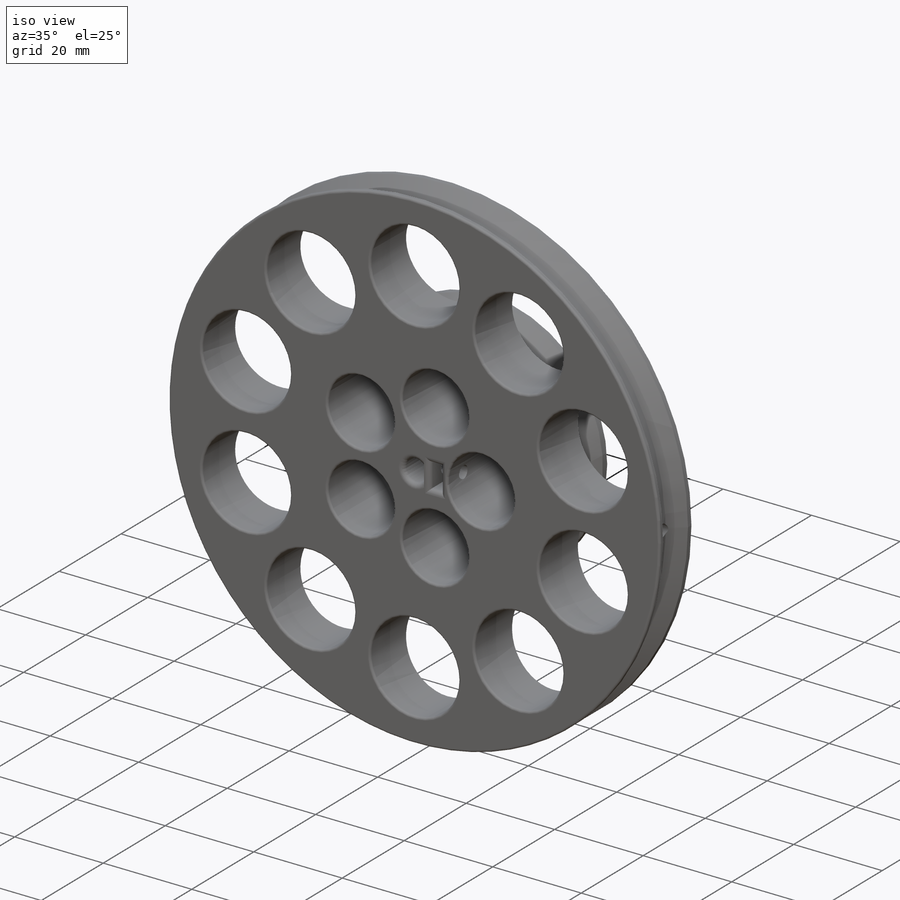
[diagram: iso view]
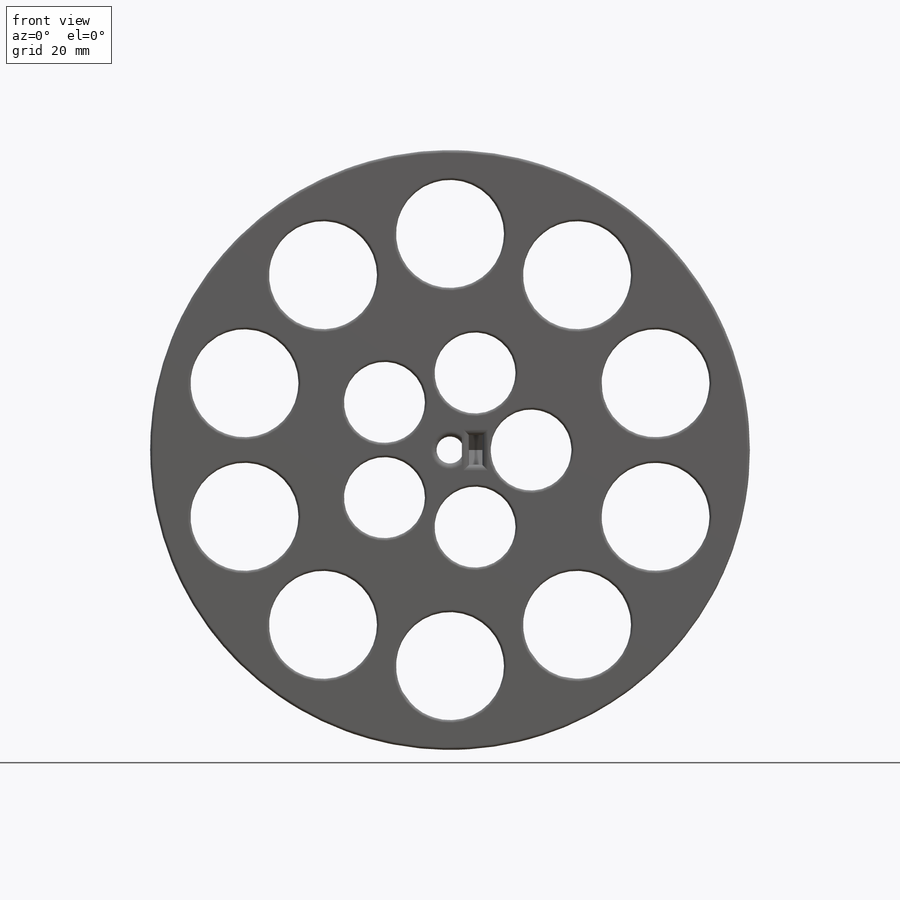
[diagram: front view]
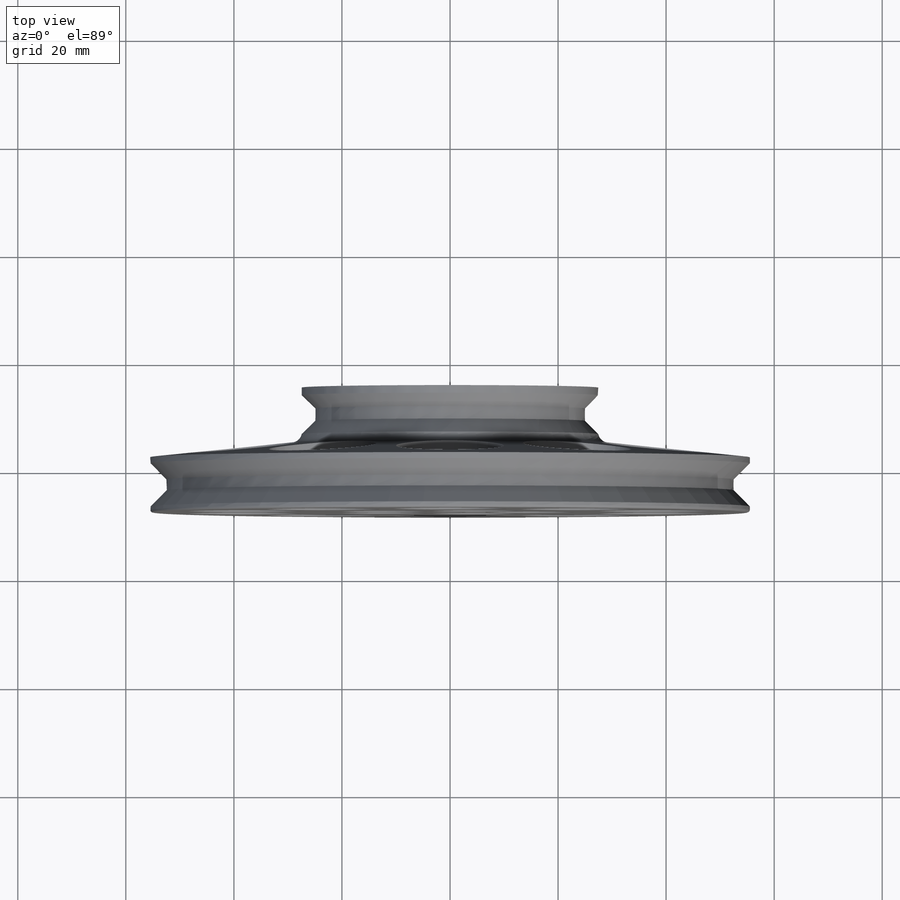
[diagram: top view]
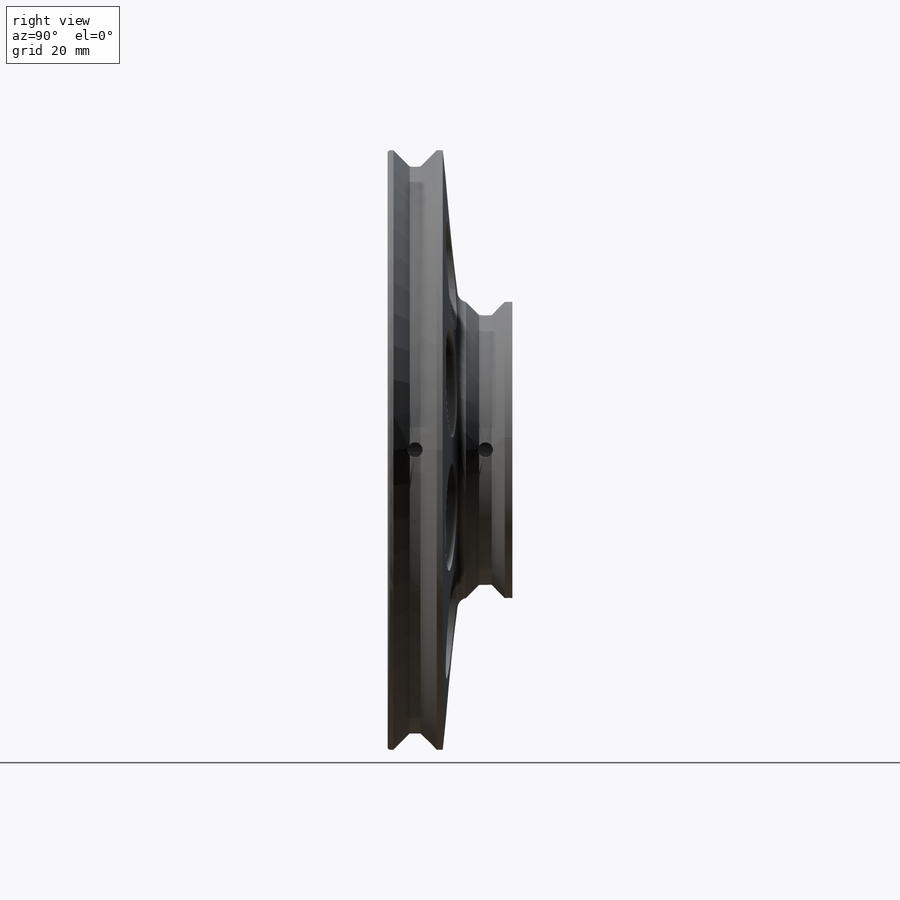
[diagram: right view]
SOLIDWORKS PART (.sldprt)
format: sldprt  version: not decoded by parser v0  size: 1,339,392 bytes
history: native  units: mm
features: sketch x41, cut_extrude x24, extrude x13, fillet x9, revolve x2, material x1, chamfer x1, plane x1, mirror x1 (+13 scaffold rows collapsed)
feature tree (106):
  scaffold x13  (default folders/planes/origin — collapsed)
  material  "Material <not specified>"
  sketch  "Sketch1"  dims[D1=5.0mm D2=105.0mm D3=4.7mm]
  extrude  "Boss-Extrude1"  Depth=6.2mm
  sketch  "Sketch2"  dims[D2=12.0mm D1=0.0mm]
  extrude  "Boss-Extrude2"  Depth=2.55mm
  sketch  "Sketch3"  dims[D1=3.0mm D2=3.6mm]
  cut_extrude  "Cut-Extrude1"  Depth=25mm
  sketch  "Sketch4"  dims[D1=5.45mm]
  cut_extrude  "Cut-Extrude2"  Depth=2.5mm
  sketch  "Sketch5"  dims[D1=8.0mm D2=18.0mm D3=8.0mm]
  cut_extrude  "Cut-Extrude3"  [1 undecoded]
  sketch  "Sketch6"  dims[D1=0.0mm]
  cut_extrude  "Cut-Extrude4"  [1 undecoded]
  fillet  "Fillet1"  Radius=3mm
  sketch  "Sketch7"  dims[D1=100.0mm D2=2.0mm]
  cut_extrude  "Cut-Extrude5"  Depth=2mm
  sketch  "Sketch8"  dims[c1.D1=3.0mm c1.D3=~43.876604mm c1.D2=2.0mm c2.D3=3.0]
  cut_extrude  "Cut-Extrude6"  [1 undecoded]
  sketch  "Sketch9"  dims[D1=3.2mm D2=3.2mm D3=3.2mm]
  cut_extrude  "Cut-Extrude7"  [1 undecoded]
  fillet  "Fillet2"  Radius=2mm
  sketch  "Sketch10"  dims[c1.D1=20.0mm c1.D2=30.0mm c1.D3=30.0mm c2.D3=30.0deg c2.D4=6.0]
  cut_extrude  "Cut-Extrude8"  [1 undecoded]
  sketch  "Sketch11"  dims[D1=0.0mm]
  extrude  "Boss-Extrude3"  [1 undecoded]
  sketch  "Sketch12"  dims[D1=0.0mm D2=0.0mm D3=0.0mm D4=0.0mm D5=0.0mm D6=0.0mm D7=0.0mm D8=0.0mm D9=0.0mm D10=0.0mm]
  extrude  "Boss-Extrude4"  Depth=2mm
  sketch  "Sketch13"  dims[D1=0.0mm D2=0.0mm D3=0.0mm D4=0.0mm D5=0.0mm D6=0.0mm D7=0.0mm D8=0.0mm D9=0.0mm D10=0.0mm D11=0.0mm D12=0.0mm]
  extrude  "Boss-Extrude5"  Depth=2mm
  sketch  "Sketch15"  dims[D1=0.0mm]
  extrude  "Boss-Extrude6"  Depth=0.75mm
  sketch  "Sketch16"  dims[D1=0.0mm]
  extrude  "Boss-Extrude7"  Depth=0.75mm
  sketch  "Sketch17"  dims[D1=2.0mm D2=4.1mm D3=4.1mm D4=3.0mm]
  revolve  "Revolve1"  Angle=360deg
  sketch  "Sketch18"  dims[D1=2.0mm D2=2.0mm D3=3.1mm]
  sketch  "Sketch19"  dims[D1=95.0mm]
  cut_extrude  "Cut-Extrude9"  Depth=3.1mm
  sketch  "Sketch20"  dims[D1=0.0mm D2=0.0mm D3=0.0mm D4=0.0mm D5=0.0mm D6=0.0mm D7=0.0mm D8=0.0mm D9=0.0mm D10=0.0mm]
  extrude  "Boss-Extrude8"  [1 undecoded]
  sketch  "Sketch22"  dims[c1.D1=3.25mm c1.D3=3.25mm c1.D2=3.55mm c2.D3=3.25mm c2.D4=7.1mm]
  cut_extrude  "Cut-Extrude10"  Depth=15mm
  sketch  "Sketch23"  dims[D1=5.5mm]
  cut_extrude  "Cut-Extrude11"  Depth=2.6mm
  chamfer  "Chamfer1"  Distance=3.1mm Angle=45deg
  sketch  "Sketch24"  dims[D1=3.0mm D2=5.1mm]
  cut_extrude  "Cut-Extrude12"  Depth=10mm
  sketch  "Sketch25"  dims[D1=0.0mm]
  cut_extrude  "Cut-Extrude13"  Depth=2mm
  fillet  "Fillet3"  Radius=1mm
  sketch  "Sketch26"
  cut_extrude  "Cut-Extrude14"  [1 undecoded]
  sketch  "Sketch27"  dims[D1=2.75mm]
  extrude  "Boss-Extrude9"  [1 undecoded]
  sketch  "Sketch28"
  extrude  "Boss-Extrude10"  [1 undecoded]
  sketch  "Sketch29"  dims[D1=20.0mm]
  extrude  "Boss-Extrude11"  Depth=16mm
  sketch  "Sketch30"  dims[c1.D1=~2.03884mm c1.D2=3.0mm c2.D1=4.0mm]
  cut_extrude  "Cut-Extrude15"  Depth=16mm
  sketch  "Sketch31"  dims[D1=5.5mm]
  cut_extrude  "Cut-Extrude16"  Depth=2.5mm
  sketch  "Sketch33"  dims[c1.D1=2.75mm c1.D2=2.75mm c1.D3=2.75mm c2.D2=1.0mm c2.D3=1.0mm]
  cut_extrude  "Cut-Extrude17"  Depth=14mm
  fillet  "Fillet4"  Radius=10mm
  fillet  "Fillet5"  Radius=1mm
  sketch  "Sketch35"  dims[D1=2.0mm]
  sketch  "Sketch34"
  extrude  "Boss-Extrude12"  Depth=0.5mm
  sketch  "Sketch36"  dims[c1.D1=10.0mm c1.D2=25.0mm c1.D3=~5.309145mm c2.D3=45.0deg]
  revolve  "Revolve2"  Angle=360deg
  sketch  "Sketch37"
  extrude  "Boss-Extrude13"  [1 undecoded]
  sketch  "Sketch38"  dims[D1=0.0mm]
  cut_extrude  "Cut-Extrude19"  [1 undecoded]
  sketch  "Sketch39"  dims[D1=20.0mm D2=40.0mm D3=10.0]
  cut_extrude  "Cut-Extrude20"  [1 undecoded]
  sketch  "Sketch40"  dims[D1=15.0mm D2=15.0mm D3=5.0]
  cut_extrude  "Cut-Extrude21"  [1 undecoded]
  sketch  "Sketch41"  dims[D1=15.0mm D2=15.0mm D3=5.0]
  cut_extrude  "Cut-Extrude22"  [1 undecoded]
  sketch  "Sketch43"  dims[D1=2.75mm D2=5.0mm]
  cut_extrude  "Cut-Extrude23"  [1 undecoded]
  sketch  "Sketch44"  dims[D1=5.5mm D2=5.5mm]
  cut_extrude  "Cut-Extrude24"  Depth=2.5mm
  sketch  "Sketch45"
  cut_extrude  "Cut-Extrude25"  Depth=2.5mm
  fillet  "Fillet6"  Radius=2mm
  fillet  "Fillet7"  Radius=1mm
  fillet  "Fillet8"  Radius=0.5mm
  fillet  "Fillet9"  Radius=0.5mm
  plane  "Plane1"  Offset=42mm
  mirror  "Mirror2"
decode coverage: 69 of 91 modeling features carry decoded parameters
note: ~ marks probable driven/reference dimensions
note: 16 parameter values undecoded
summary: no parameter record found for 16 features
note: suppression state not decoded; provenance and decode notes live in map.json
